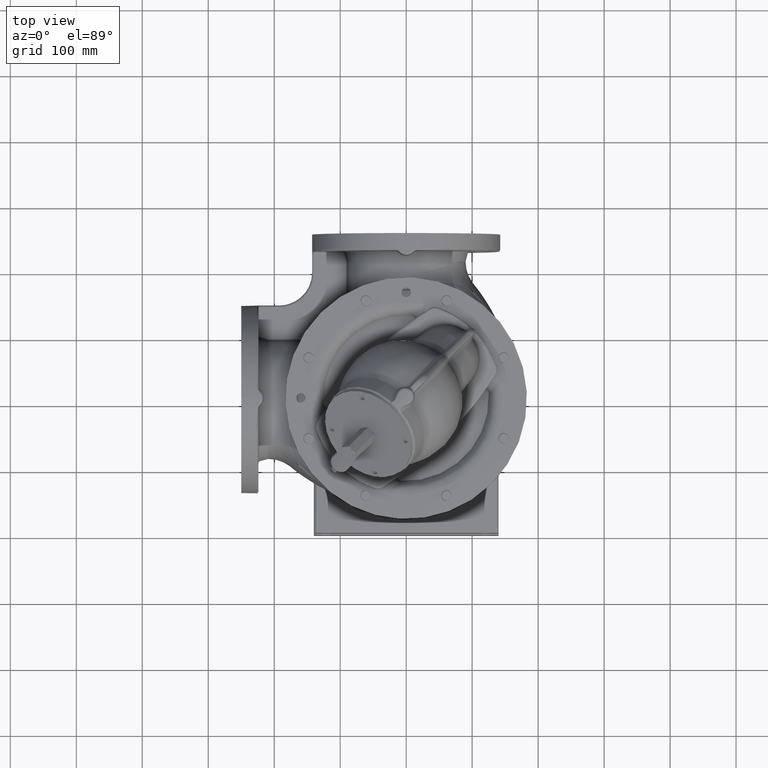
[diagram: clean part render]
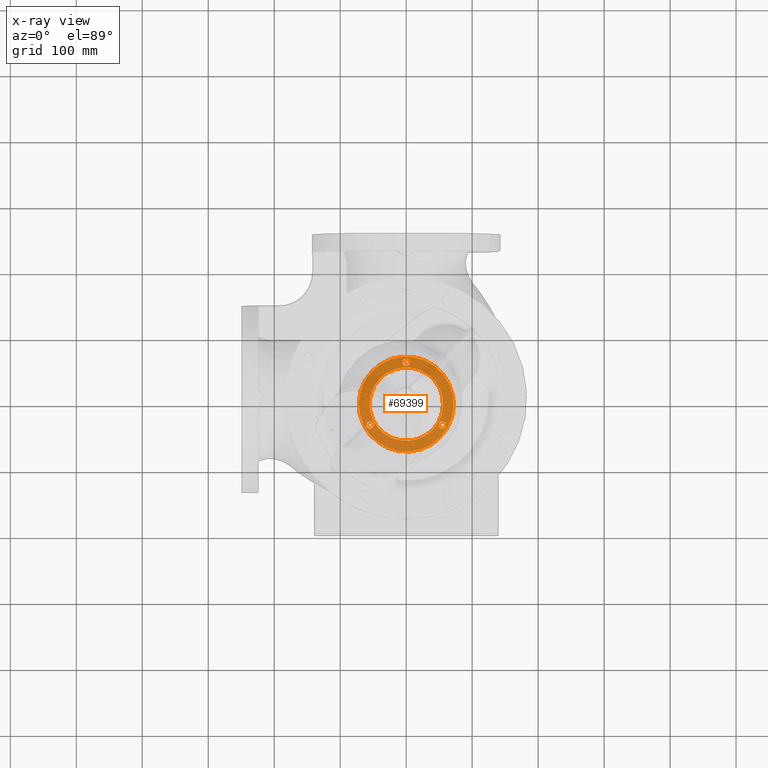
[diagram: x-ray — body ghosted, one internal face saturated and labeled with its STEP entity id]
A machine part, top view, then the same camera in x-ray: the body is ghosted and one INTERNAL B-rep face — a face not visible from any outside direction — is saturated and labeled: STEP entity #69399.
In plain terms, the highlighted planar face has unit normal (0, 0, 1).
Its self-contained STEP definition (entity closure, byte-faithful):
#10356=CARTESIAN_POINT('',(0.E0,1.E0,-2.894E2));
#10357=DIRECTION('',(0.E0,0.E0,-1.E0));
#10358=DIRECTION('',(8.660254037844E-1,-5.E-1,0.E0));
#10359=AXIS2_PLACEMENT_3D('',#10356,#10357,#10358);
#10361=CARTESIAN_POINT('',(0.E0,1.E0,-2.894E2));
#10362=DIRECTION('',(0.E0,0.E0,-1.E0));
#10363=DIRECTION('',(-8.660254037844E-1,5.E-1,0.E0));
#10364=AXIS2_PLACEMENT_3D('',#10361,#10362,#10363);
#10366=CARTESIAN_POINT('',(5.499261314031E1,-3.075E1,-2.894E2));
#10367=DIRECTION('',(0.E0,0.E0,-1.E0));
#10368=DIRECTION('',(5.E-1,8.660254037844E-1,0.E0));
#10369=AXIS2_PLACEMENT_3D('',#10366,#10367,#10368);
#10371=CARTESIAN_POINT('',(5.499261314031E1,-3.075E1,-2.894E2));
#10372=DIRECTION('',(0.E0,0.E0,-1.E0));
#10373=DIRECTION('',(-5.E-1,-8.660254037844E-1,0.E0));
#10374=AXIS2_PLACEMENT_3D('',#10371,#10372,#10373);
#10376=CARTESIAN_POINT('',(0.E0,6.45E1,-2.894E2));
#10377=DIRECTION('',(0.E0,0.E0,-1.E0));
#10378=DIRECTION('',(-1.E0,0.E0,0.E0));
#10379=AXIS2_PLACEMENT_3D('',#10376,#10377,#10378);
#10381=CARTESIAN_POINT('',(0.E0,6.45E1,-2.894E2));
#10382=DIRECTION('',(0.E0,0.E0,-1.E0));
#10383=DIRECTION('',(1.E0,1.808654236480E-14,0.E0));
#10384=AXIS2_PLACEMENT_3D('',#10381,#10382,#10383);
#10386=CARTESIAN_POINT('',(-5.499261314031E1,-3.075E1,-2.894E2));
#10387=DIRECTION('',(0.E0,0.E0,-1.E0));
#10388=DIRECTION('',(5.E-1,-8.660254037844E-1,0.E0));
#10389=AXIS2_PLACEMENT_3D('',#10386,#10387,#10388);
#10391=CARTESIAN_POINT('',(-5.499261314031E1,-3.075E1,-2.894E2));
#10392=DIRECTION('',(0.E0,0.E0,-1.E0));
#10393=DIRECTION('',(-5.E-1,8.660254037844E-1,0.E0));
#10394=AXIS2_PLACEMENT_3D('',#10391,#10392,#10393);
#10396=CARTESIAN_POINT('',(0.E0,1.E0,-2.894E2));
#10397=DIRECTION('',(0.E0,0.E0,1.E0));
#10398=DIRECTION('',(-8.660254037844E-1,5.E-1,0.E0));
#10399=AXIS2_PLACEMENT_3D('',#10396,#10397,#10398);
#10401=CARTESIAN_POINT('',(0.E0,1.E0,-2.894E2));
#10402=DIRECTION('',(0.E0,0.E0,1.E0));
#10403=DIRECTION('',(8.660254037844E-1,-5.E-1,0.E0));
#10404=AXIS2_PLACEMENT_3D('',#10401,#10402,#10403);
#41258=CARTESIAN_POINT('',(-5.224261314031E1,-3.551313972081E1,-2.894E2));
#41259=VERTEX_POINT('',#41258);
#41260=CARTESIAN_POINT('',(-5.774261314031E1,-2.598686027919E1,-2.894E2));
#41261=VERTEX_POINT('',#41260);
#41262=CARTESIAN_POINT('',(5.774261314031E1,-2.598686027919E1,-2.894E2));
#41263=CARTESIAN_POINT('',(5.224261314031E1,-3.551313972081E1,-2.894E2));
#41264=VERTEX_POINT('',#41262);
#41265=VERTEX_POINT('',#41263);
#41266=CARTESIAN_POINT('',(-5.5E0,6.45E1,-2.894E2));
#41267=CARTESIAN_POINT('',(5.5E0,6.45E1,-2.894E2));
#41268=VERTEX_POINT('',#41266);
#41269=VERTEX_POINT('',#41267);
#41278=CARTESIAN_POINT('',(-4.823761499079E1,2.885E1,-2.894E2));
#41279=CARTESIAN_POINT('',(4.823761499079E1,-2.685E1,-2.894E2));
#41280=VERTEX_POINT('',#41278);
#41281=VERTEX_POINT('',#41279);
#41298=CARTESIAN_POINT('',(6.235382907248E1,-3.5E1,-2.894E2));
#41299=CARTESIAN_POINT('',(-6.235382907248E1,3.7E1,-2.894E2));
#41300=VERTEX_POINT('',#41298);
#41301=VERTEX_POINT('',#41299);
#69365=CARTESIAN_POINT('',(0.E0,1.E0,-2.894E2));
#69366=DIRECTION('',(0.E0,0.E0,1.E0));
#69367=DIRECTION('',(-8.660254037844E-1,5.E-1,0.E0));
#69368=AXIS2_PLACEMENT_3D('',#69365,#69366,#69367);
#69369=PLANE('',#69368);
#69371=ORIENTED_EDGE('',*,*,#69370,.T.);
#69373=ORIENTED_EDGE('',*,*,#69372,.T.);
#69374=EDGE_LOOP('',(#69371,#69373));
#69375=FACE_OUTER_BOUND('',#69374,.F.);
#69377=ORIENTED_EDGE('',*,*,#69376,.F.);
#69379=ORIENTED_EDGE('',*,*,#69378,.F.);
#69380=EDGE_LOOP('',(#69377,#69379));
#69381=FACE_BOUND('',#69380,.F.);
#69383=ORIENTED_EDGE('',*,*,#69382,.F.);
#69385=ORIENTED_EDGE('',*,*,#69384,.F.);
#69386=EDGE_LOOP('',(#69383,#69385));
#69387=FACE_BOUND('',#69386,.F.);
#69389=ORIENTED_EDGE('',*,*,#69388,.F.);
#69391=ORIENTED_EDGE('',*,*,#69390,.F.);
#69392=EDGE_LOOP('',(#69389,#69391));
#69393=FACE_BOUND('',#69392,.F.);
#69394=ORIENTED_EDGE('',*,*,#69355,.T.);
#69396=ORIENTED_EDGE('',*,*,#69395,.T.);
#69397=EDGE_LOOP('',(#69394,#69396));
#69398=FACE_BOUND('',#69397,.F.);
#69399=ADVANCED_FACE('',(#69375,#69381,#69387,#69393,#69398),#69369,.T.);
#10360=CIRCLE('',#10359,7.2E1);
#10365=CIRCLE('',#10364,7.2E1);
#10370=CIRCLE('',#10369,5.5E0);
#10375=CIRCLE('',#10374,5.5E0);
#10380=CIRCLE('',#10379,5.5E0);
#10385=CIRCLE('',#10384,5.5E0);
#10390=CIRCLE('',#10389,5.5E0);
#10395=CIRCLE('',#10394,5.5E0);
#10400=CIRCLE('',#10399,5.57E1);
#10405=CIRCLE('',#10404,5.57E1);
#69355=EDGE_CURVE('',#41280,#41281,#10400,.T.);
#69370=EDGE_CURVE('',#41300,#41301,#10360,.T.);
#69372=EDGE_CURVE('',#41301,#41300,#10365,.T.);
#69376=EDGE_CURVE('',#41264,#41265,#10370,.T.);
#69378=EDGE_CURVE('',#41265,#41264,#10375,.T.);
#69382=EDGE_CURVE('',#41268,#41269,#10380,.T.);
#69384=EDGE_CURVE('',#41269,#41268,#10385,.T.);
#69388=EDGE_CURVE('',#41259,#41261,#10390,.T.);
#69390=EDGE_CURVE('',#41261,#41259,#10395,.T.);
#69395=EDGE_CURVE('',#41281,#41280,#10405,.T.);